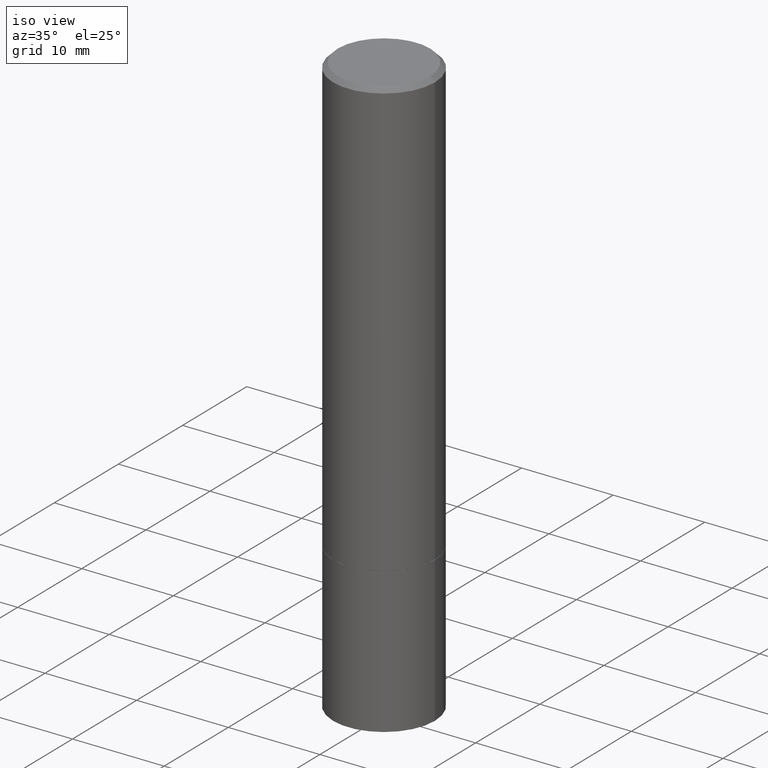
[diagram: clean part render]
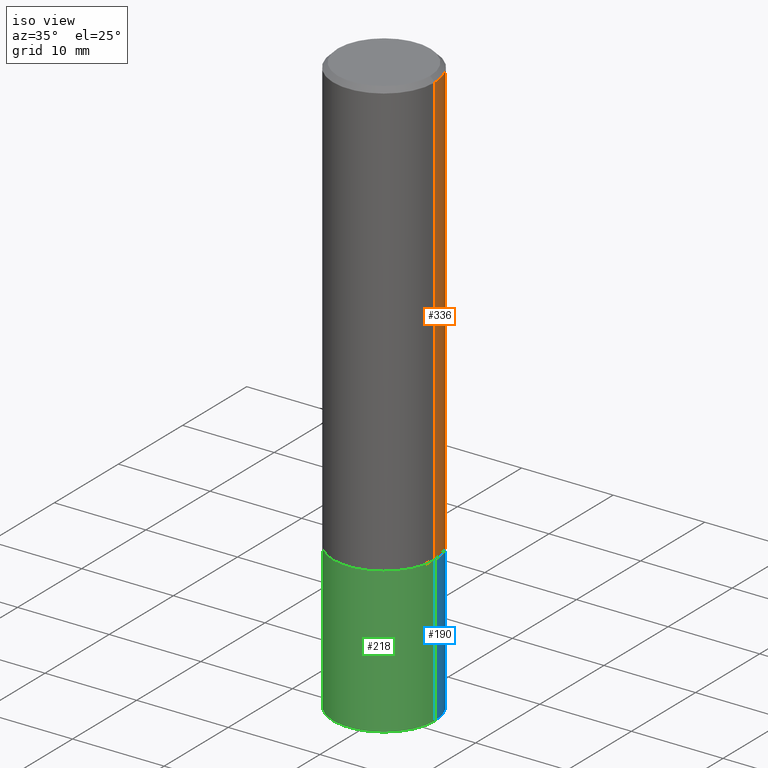
[diagram: same view with three faces highlighted in distinct colors, each labeled with its STEP entity id]
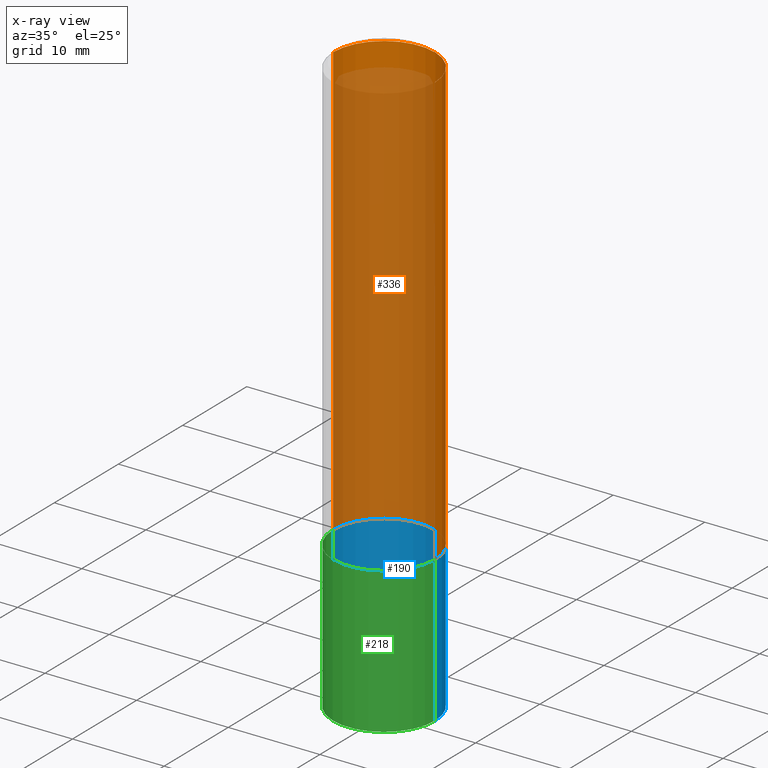
[diagram: x-ray of the same camera — body ghosted, the three highlighted faces saturated]
A machine part, iso view with three faces highlighted in distinct colors.
The next image is the same camera in x-ray (body ghosted, the three faces saturated) — at least one of them is partly hidden behind the body in this view.
Their STEP definitions:

[orange] entity #336 — the highlighted cylindrical surface (partial cylindrical patch) has radius 5.5562 mm, axis along (-0, 0, 1).
#31 = DIRECTION ( 'NONE',  ( -2.445468806185136877E-29, 3.491481338843145188E-15, 1.000000000000000000 ) ) ;
#48 = ORIENTED_EDGE ( 'NONE', *, *, #89, .T. ) ;
#54 = CARTESIAN_POINT ( 'NONE',  ( 4.582808542790945516E-29, -6.543036028992054911E-15, -1.874000000000000110 ) ) ;
#67 = CYLINDRICAL_SURFACE ( 'NONE', #250, 0.2187499999999998612 ) ;
#78 = VECTOR ( 'NONE', #31, 39.37007874015748143 ) ;
#82 = EDGE_CURVE ( 'NONE', #105, #263, #274, .T. ) ;
#89 = EDGE_CURVE ( 'NONE', #105, #229, #284, .T. ) ;
#105 = VERTEX_POINT ( 'NONE', #168 ) ;
#106 = DIRECTION ( 'NONE',  ( 1.000000000000000000, -6.982962677686266711E-15, 0.000000000000000000 ) ) ;
#125 = ORIENTED_EDGE ( 'NONE', *, *, #82, .F. ) ;
#130 = CARTESIAN_POINT ( 'NONE',  ( 0.2187499999999997502, -1.570563563789383855E-15, -0.02000000000000006287 ) ) ;
#157 = DIRECTION ( 'NONE',  ( 1.000000000000000000, -6.982962677686266711E-15, 4.876176775795935793E-29 ) ) ;
#164 = ORIENTED_EDGE ( 'NONE', *, *, #312, .F. ) ;
#168 = CARTESIAN_POINT ( 'NONE',  ( 0.2187499999999999445, -8.070559114735925754E-15, -1.874000000000000110 ) ) ;
#181 = AXIS2_PLACEMENT_3D ( 'NONE', #266, #234, #106 ) ;
#184 = DIRECTION ( 'NONE',  ( -2.445468806185136877E-29, 3.491481338843145188E-15, 1.000000000000000000 ) ) ;
#203 = CARTESIAN_POINT ( 'NONE',  ( -0.2187499999999999445, -1.752120593409238962E-15, -1.874000000000000110 ) ) ;
#206 = VERTEX_POINT ( 'NONE', #251 ) ;
#209 = LINE ( 'NONE', #329, #249 ) ;
#212 = ORIENTED_EDGE ( 'NONE', *, *, #241, .T. ) ;
#220 = CARTESIAN_POINT ( 'NONE',  ( 0.2187499999999998612, -1.527523085743869857E-15, 1.066663669705360324E-29 ) ) ;
#229 = VERTEX_POINT ( 'NONE', #203 ) ;
#234 = DIRECTION ( 'NONE',  ( -2.445468806185136597E-29, 3.491481338843145583E-15, 1.000000000000000000 ) ) ;
#241 = EDGE_CURVE ( 'NONE', #229, #206, #209, .T. ) ;
#249 = VECTOR ( 'NONE', #184, 39.37007874015748143 ) ;
#250 = AXIS2_PLACEMENT_3D ( 'NONE', #260, #355, #157 ) ;
#251 = CARTESIAN_POINT ( 'NONE',  ( -0.2187499999999997502, 1.457693458967005967E-15, -0.02000000000000006287 ) ) ;
#259 = FACE_OUTER_BOUND ( 'NONE', #267, .T. ) ;
#260 = CARTESIAN_POINT ( 'NONE',  ( 0.000000000000000000, 0.000000000000000000, 0.000000000000000000 ) ) ;
#263 = VERTEX_POINT ( 'NONE', #130 ) ;
#266 = CARTESIAN_POINT ( 'NONE',  ( 4.890937612370288923E-31, -6.982962677686312563E-17, -0.02000000000000006287 ) ) ;
#267 = EDGE_LOOP ( 'NONE', ( #48, #212, #164, #125 ) ) ;
#270 = DIRECTION ( 'NONE',  ( 1.000000000000000000, -6.982962677686269077E-15, 0.000000000000000000 ) ) ;
#274 = LINE ( 'NONE', #220, #78 ) ;
#282 = CIRCLE ( 'NONE', #181, 0.2187499999999997502 ) ;
#284 = CIRCLE ( 'NONE', #338, 0.2187499999999999445 ) ;
#312 = EDGE_CURVE ( 'NONE', #263, #206, #282, .T. ) ;
#329 = CARTESIAN_POINT ( 'NONE',  ( -0.2187499999999998612, 1.554312234475218171E-15, -1.076017050993259922E-29 ) ) ;
#332 = DIRECTION ( 'NONE',  ( -2.445468806185136597E-29, 3.491481338843145583E-15, 1.000000000000000000 ) ) ;
#336 = ADVANCED_FACE ( 'NONE', ( #259 ), #67, .T. ) ;
#338 = AXIS2_PLACEMENT_3D ( 'NONE', #54, #332, #270 ) ;
#355 = DIRECTION ( 'NONE',  ( -2.445468806185136597E-29, 3.491481338843145583E-15, 1.000000000000000000 ) ) ;

[blue] entity #190 — the highlighted cylindrical surface (partial cylindrical patch) has radius 5.5562 mm, axis along (-0, 0, 1).
#4 = DIRECTION ( 'NONE',  ( 1.000000000000000000, -6.982962677686266711E-15, 4.876176775795935232E-29 ) ) ;
#14 = CARTESIAN_POINT ( 'NONE',  ( -0.2187500000000000000, -6.083303194244162668E-15, -1.875000000000000000 ) ) ;
#22 = DIRECTION ( 'NONE',  ( -2.445468806185136877E-29, 3.491481338843145188E-15, 1.000000000000000000 ) ) ;
#29 = CIRCLE ( 'NONE', #66, 0.2187500000000000000 ) ;
#32 = EDGE_CURVE ( 'NONE', #45, #264, #37, .T. ) ;
#37 = CIRCLE ( 'NONE', #333, 0.2187500000000000000 ) ;
#42 = EDGE_CURVE ( 'NONE', #261, #352, #29, .T. ) ;
#45 = VERTEX_POINT ( 'NONE', #83 ) ;
#66 = AXIS2_PLACEMENT_3D ( 'NONE', #109, #223, #169 ) ;
#71 = EDGE_LOOP ( 'NONE', ( #293, #237, #133, #183 ) ) ;
#83 = CARTESIAN_POINT ( 'NONE',  ( 0.2187500000000000000, -8.074050596074770339E-15, -1.875000000000000000 ) ) ;
#93 = FACE_OUTER_BOUND ( 'NONE', #71, .T. ) ;
#100 = LINE ( 'NONE', #357, #138 ) ;
#104 = CARTESIAN_POINT ( 'NONE',  ( -0.2187500000000000000, -6.083303194244162668E-15, -2.500000000000000000 ) ) ;
#109 = CARTESIAN_POINT ( 'NONE',  ( 6.113672015462842613E-29, -8.728703347107864943E-15, -2.500000000000000000 ) ) ;
#124 = CARTESIAN_POINT ( 'NONE',  ( 0.2187500000000000000, -1.527523085743870843E-15, 1.066663669705360885E-29 ) ) ;
#133 = ORIENTED_EDGE ( 'NONE', *, *, #32, .F. ) ;
#138 = VECTOR ( 'NONE', #205, 39.37007874015748143 ) ;
#139 = CARTESIAN_POINT ( 'NONE',  ( 4.585254011597131119E-29, -6.546527510330898707E-15, -1.875000000000000000 ) ) ;
#167 = DIRECTION ( 'NONE',  ( 1.000000000000000000, -6.982962677686267499E-15, 0.000000000000000000 ) ) ;
#169 = DIRECTION ( 'NONE',  ( 1.000000000000000000, -6.982962677686267499E-15, 0.000000000000000000 ) ) ;
#174 = CYLINDRICAL_SURFACE ( 'NONE', #202, 0.2187500000000000000 ) ;
#177 = LINE ( 'NONE', #124, #198 ) ;
#183 = ORIENTED_EDGE ( 'NONE', *, *, #265, .F. ) ;
#190 = ADVANCED_FACE ( 'NONE', ( #93 ), #174, .T. ) ;
#198 = VECTOR ( 'NONE', #22, 39.37007874015748143 ) ;
#202 = AXIS2_PLACEMENT_3D ( 'NONE', #349, #281, #4 ) ;
#205 = DIRECTION ( 'NONE',  ( -2.445468806185136877E-29, 3.491481338843145188E-15, 1.000000000000000000 ) ) ;
#223 = DIRECTION ( 'NONE',  ( -2.445468806185136597E-29, 3.491481338843145583E-15, 1.000000000000000000 ) ) ;
#237 = ORIENTED_EDGE ( 'NONE', *, *, #254, .T. ) ;
#254 = EDGE_CURVE ( 'NONE', #352, #264, #100, .T. ) ;
#261 = VERTEX_POINT ( 'NONE', #299 ) ;
#264 = VERTEX_POINT ( 'NONE', #14 ) ;
#265 = EDGE_CURVE ( 'NONE', #261, #45, #177, .T. ) ;
#269 = DIRECTION ( 'NONE',  ( -2.445468806185136597E-29, 3.491481338843145583E-15, 1.000000000000000000 ) ) ;
#281 = DIRECTION ( 'NONE',  ( -2.445468806185136597E-29, 3.491481338843145583E-15, 1.000000000000000000 ) ) ;
#293 = ORIENTED_EDGE ( 'NONE', *, *, #42, .T. ) ;
#299 = CARTESIAN_POINT ( 'NONE',  ( 0.2187500000000000000, -1.025622643285173500E-14, -2.500000000000000000 ) ) ;
#333 = AXIS2_PLACEMENT_3D ( 'NONE', #139, #269, #167 ) ;
#349 = CARTESIAN_POINT ( 'NONE',  ( 0.000000000000000000, 0.000000000000000000, 0.000000000000000000 ) ) ;
#352 = VERTEX_POINT ( 'NONE', #104 ) ;
#357 = CARTESIAN_POINT ( 'NONE',  ( -0.2187500000000000000, 1.554312234475219157E-15, -1.076017050993260622E-29 ) ) ;

[green] entity #218 — the highlighted cylindrical surface (partial cylindrical patch) has radius 5.5562 mm, axis along (-0, 0, 1).
#6 = FACE_OUTER_BOUND ( 'NONE', #306, .T. ) ;
#8 = EDGE_CURVE ( 'NONE', #352, #261, #10, .T. ) ;
#10 = CIRCLE ( 'NONE', #242, 0.2187500000000000000 ) ;
#14 = CARTESIAN_POINT ( 'NONE',  ( -0.2187500000000000000, -6.083303194244162668E-15, -1.875000000000000000 ) ) ;
#16 = ORIENTED_EDGE ( 'NONE', *, *, #341, .F. ) ;
#20 = CARTESIAN_POINT ( 'NONE',  ( 4.585254011597131119E-29, -6.546527510330898707E-15, -1.875000000000000000 ) ) ;
#22 = DIRECTION ( 'NONE',  ( -2.445468806185136877E-29, 3.491481338843145188E-15, 1.000000000000000000 ) ) ;
#39 = DIRECTION ( 'NONE',  ( 1.000000000000000000, -6.982962677686266711E-15, 4.876176775795935232E-29 ) ) ;
#45 = VERTEX_POINT ( 'NONE', #83 ) ;
#51 = AXIS2_PLACEMENT_3D ( 'NONE', #343, #87, #39 ) ;
#83 = CARTESIAN_POINT ( 'NONE',  ( 0.2187500000000000000, -8.074050596074770339E-15, -1.875000000000000000 ) ) ;
#87 = DIRECTION ( 'NONE',  ( -2.445468806185136597E-29, 3.491481338843145583E-15, 1.000000000000000000 ) ) ;
#99 = AXIS2_PLACEMENT_3D ( 'NONE', #20, #236, #359 ) ;
#100 = LINE ( 'NONE', #357, #138 ) ;
#104 = CARTESIAN_POINT ( 'NONE',  ( -0.2187500000000000000, -6.083303194244162668E-15, -2.500000000000000000 ) ) ;
#124 = CARTESIAN_POINT ( 'NONE',  ( 0.2187500000000000000, -1.527523085743870843E-15, 1.066663669705360885E-29 ) ) ;
#138 = VECTOR ( 'NONE', #205, 39.37007874015748143 ) ;
#158 = ORIENTED_EDGE ( 'NONE', *, *, #8, .T. ) ;
#177 = LINE ( 'NONE', #124, #198 ) ;
#191 = DIRECTION ( 'NONE',  ( -2.445468806185136597E-29, 3.491481338843145583E-15, 1.000000000000000000 ) ) ;
#198 = VECTOR ( 'NONE', #22, 39.37007874015748143 ) ;
#205 = DIRECTION ( 'NONE',  ( -2.445468806185136877E-29, 3.491481338843145188E-15, 1.000000000000000000 ) ) ;
#218 = ADVANCED_FACE ( 'NONE', ( #6 ), #351, .T. ) ;
#236 = DIRECTION ( 'NONE',  ( -2.445468806185136597E-29, 3.491481338843145583E-15, 1.000000000000000000 ) ) ;
#239 = CARTESIAN_POINT ( 'NONE',  ( 6.113672015462842613E-29, -8.728703347107864943E-15, -2.500000000000000000 ) ) ;
#242 = AXIS2_PLACEMENT_3D ( 'NONE', #239, #191, #362 ) ;
#254 = EDGE_CURVE ( 'NONE', #352, #264, #100, .T. ) ;
#261 = VERTEX_POINT ( 'NONE', #299 ) ;
#264 = VERTEX_POINT ( 'NONE', #14 ) ;
#265 = EDGE_CURVE ( 'NONE', #261, #45, #177, .T. ) ;
#273 = CIRCLE ( 'NONE', #99, 0.2187500000000000000 ) ;
#299 = CARTESIAN_POINT ( 'NONE',  ( 0.2187500000000000000, -1.025622643285173500E-14, -2.500000000000000000 ) ) ;
#306 = EDGE_LOOP ( 'NONE', ( #361, #158, #324, #16 ) ) ;
#324 = ORIENTED_EDGE ( 'NONE', *, *, #265, .T. ) ;
#341 = EDGE_CURVE ( 'NONE', #264, #45, #273, .T. ) ;
#343 = CARTESIAN_POINT ( 'NONE',  ( 0.000000000000000000, 0.000000000000000000, 0.000000000000000000 ) ) ;
#351 = CYLINDRICAL_SURFACE ( 'NONE', #51, 0.2187500000000000000 ) ;
#352 = VERTEX_POINT ( 'NONE', #104 ) ;
#357 = CARTESIAN_POINT ( 'NONE',  ( -0.2187500000000000000, 1.554312234475219157E-15, -1.076017050993260622E-29 ) ) ;
#359 = DIRECTION ( 'NONE',  ( 1.000000000000000000, -6.982962677686267499E-15, 0.000000000000000000 ) ) ;
#361 = ORIENTED_EDGE ( 'NONE', *, *, #254, .F. ) ;
#362 = DIRECTION ( 'NONE',  ( 1.000000000000000000, -6.982962677686267499E-15, 0.000000000000000000 ) ) ;